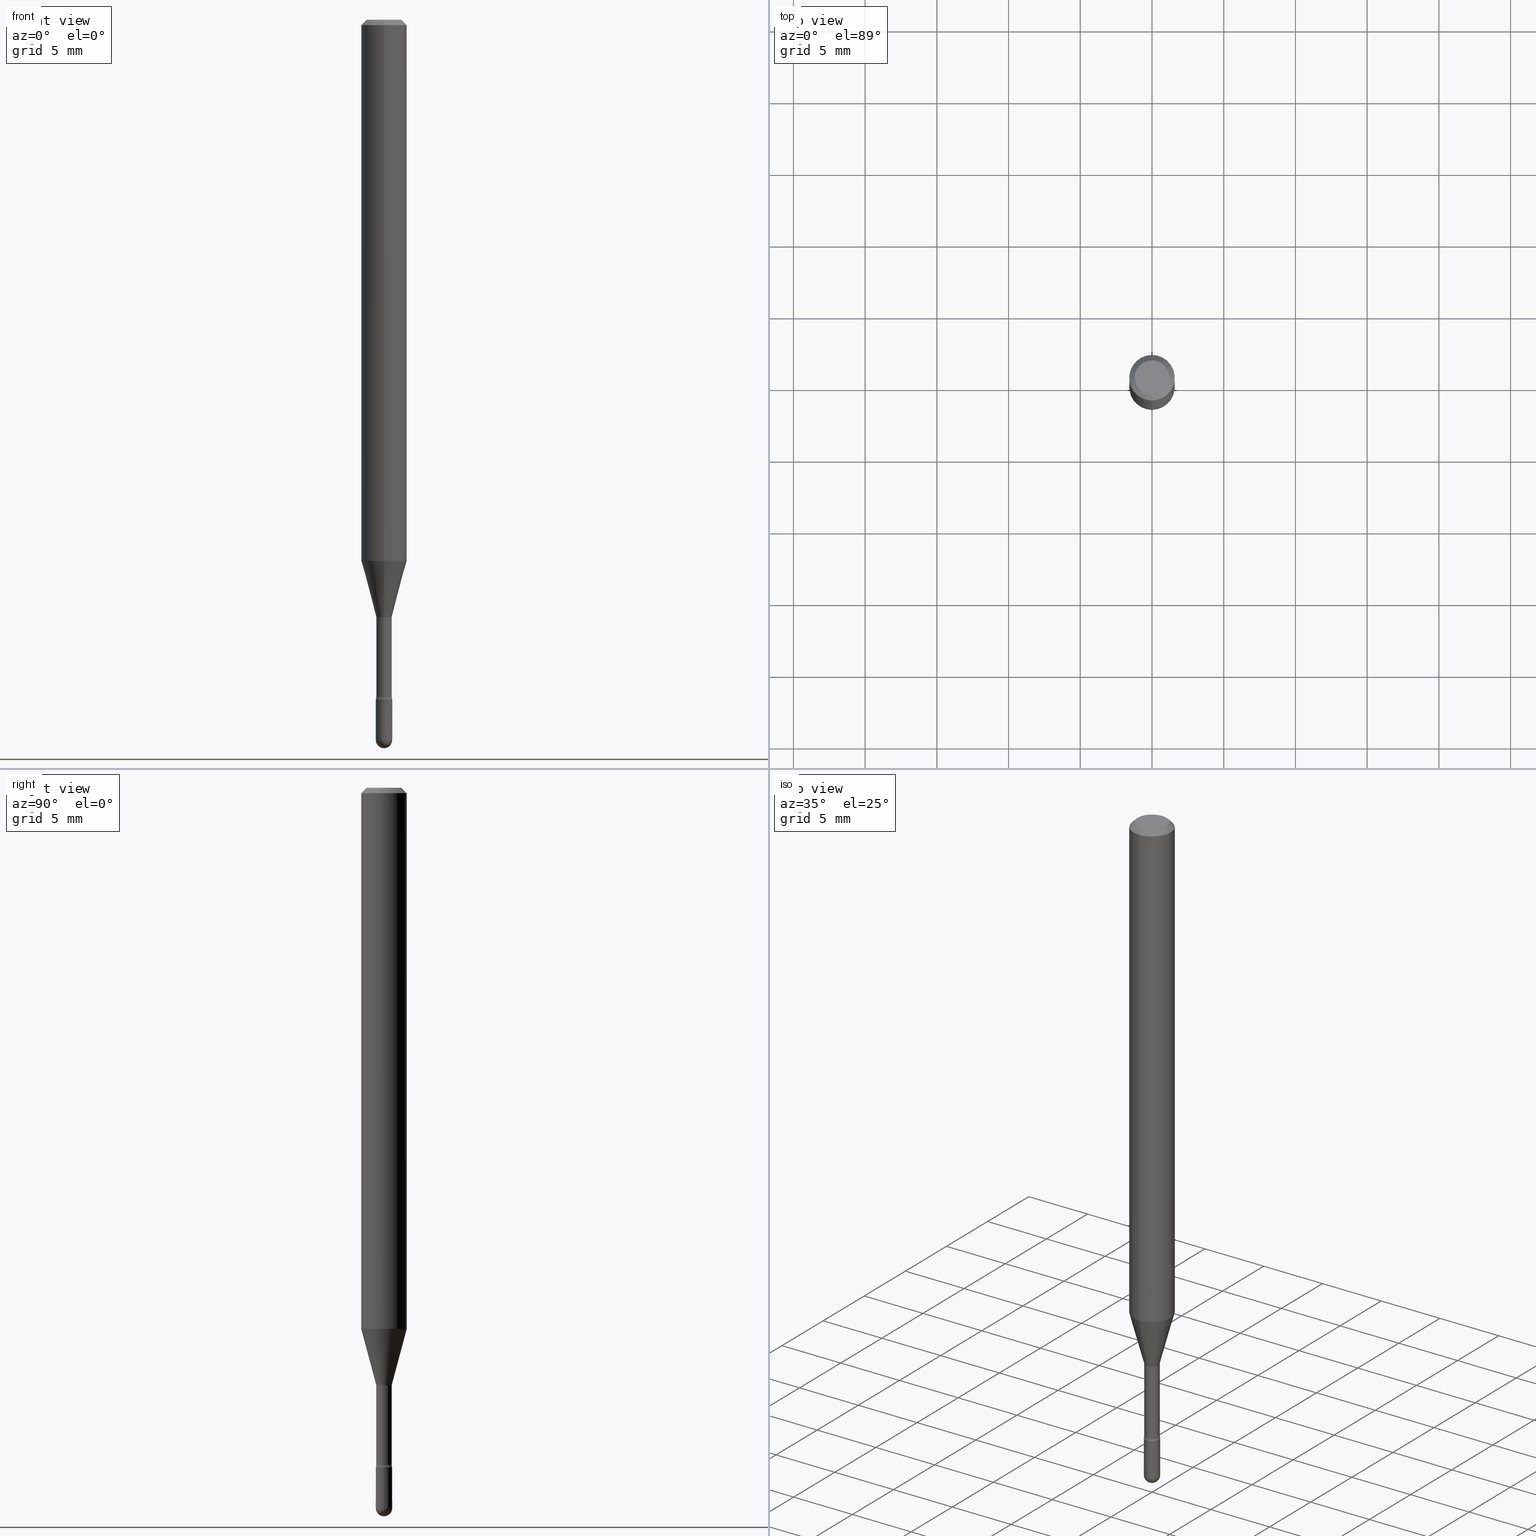
[diagram: canonical four-view strip — front | top / right | iso, engineering-drawing reading convention]
A machine part, canonical four-view strip (front | top / right | iso — engineering-drawing reading convention). The complete STEP part file that produces these views, byte-faithful:
ISO-10303-21;
HEADER;
FILE_DESCRIPTION (( 'STEP AP203' ),
    '1' );
FILE_NAME ('09315.STEP',
    '2024-04-09T22:24:54',
    ( '' ),
    ( '' ),
    'SwSTEP 2.0',
    'SolidWorks 2023',
    '' );
FILE_SCHEMA (( 'CONFIG_CONTROL_DESIGN' ));
ENDSEC;

DATA;
#1 = DIRECTION ( 'NONE',  ( -6.982962677686267499E-15, -1.000000000000000000, 0.000000000000000000 ) ) ;
#2 = ORIENTED_EDGE ( 'NONE', *, *, #490, .T. ) ;
#3 = VECTOR ( 'NONE', #277, 39.37007874015748143 ) ;
#4 = AXIS2_PLACEMENT_3D ( 'NONE', #561, #41, #164 ) ;
#5 =( CONVERSION_BASED_UNIT ( 'INCH', #313 ) LENGTH_UNIT ( ) NAMED_UNIT ( #208 ) );
#6 = CARTESIAN_POINT ( 'NONE',  ( 4.545590650445673704E-29, -6.489898742486526882E-15, -1.858780876267511539 ) ) ;
#7 = ADVANCED_FACE ( 'NONE', ( #518 ), #285, .T. ) ;
#8 = ORIENTED_EDGE ( 'NONE', *, *, #364, .F. ) ;
#9 = PERSON_AND_ORGANIZATION_ROLE ( 'design_owner' ) ;
#10 = FACE_OUTER_BOUND ( 'NONE', #241, .T. ) ;
#11 = APPLICATION_CONTEXT ( 'configuration controlled 3d designs of mechanical parts and assemblies' ) ;
#12 = ORIENTED_EDGE ( 'NONE', *, *, #560, .T. ) ;
#13 = VERTEX_POINT ( 'NONE', #111 ) ;
#14 = DATE_AND_TIME ( #405, #348 ) ;
#15 = DIRECTION ( 'NONE',  ( 0.000000000000000000, 0.000000000000000000, 1.000000000000000000 ) ) ;
#16 = CIRCLE ( 'NONE', #69, 0.06250000000000000000 ) ;
#17 = VECTOR ( 'NONE', #477, 39.37007874015748143 ) ;
#18 = LINE ( 'NONE', #98, #3 ) ;
#19 = ORIENTED_EDGE ( 'NONE', *, *, #134, .F. ) ;
#20 = LINE ( 'NONE', #463, #387 ) ;
#21 = ORIENTED_EDGE ( 'NONE', *, *, #359, .T. ) ;
#22 = FACE_OUTER_BOUND ( 'NONE', #488, .T. ) ;
#23 = CARTESIAN_POINT ( 'NONE',  ( 4.005819137426080629E-29, -5.719491093677303486E-15, -1.638092501787273170 ) ) ;
#24 = ORIENTED_EDGE ( 'NONE', *, *, #56, .F. ) ;
#25 = ADVANCED_FACE ( 'NONE', ( #103 ), #91, .F. ) ;
#26 = AXIS2_PLACEMENT_3D ( 'NONE', #416, #73, #556 ) ;
#27 = AXIS2_PLACEMENT_3D ( 'NONE', #168, #162, #340 ) ;
#28 = DIRECTION ( 'NONE',  ( -6.982962677686265922E-15, -1.000000000000000000, 3.483106191921935554E-15 ) ) ;
#29 = ADVANCED_FACE ( 'NONE', ( #293 ), #63, .T. ) ;
#30 = ORIENTED_EDGE ( 'NONE', *, *, #39, .F. ) ;
#31 = DIRECTION ( 'NONE',  ( 1.000000000000000000, -6.982962677686269077E-15, 0.000000000000000000 ) ) ;
#32 = ORIENTED_EDGE ( 'NONE', *, *, #517, .T. ) ;
#33 = VERTEX_POINT ( 'NONE', #249 ) ;
#34 = DIRECTION ( 'NONE',  ( -6.982962677686266711E-15, -1.000000000000000000, 3.491555627925129250E-15 ) ) ;
#35 = CARTESIAN_POINT ( 'NONE',  ( -0.02249999999999999917, 1.598721155460225359E-16, -1.106760395307353780E-30 ) ) ;
#36 = AXIS2_PLACEMENT_3D ( 'NONE', #146, #190, #547 ) ;
#37 = CIRCLE ( 'NONE', #243, 0.02115000000000004723 ) ;
#38 = CARTESIAN_POINT ( 'NONE',  ( 4.364351673553919652E-16, 0.06249999999999995143, -0.01500000000000030129 ) ) ;
#39 = EDGE_CURVE ( 'NONE', #449, #13, #252, .T. ) ;
#40 = PERSON_AND_ORGANIZATION ( #248, #515 ) ;
#41 = DIRECTION ( 'NONE',  ( -2.445416930396453536E-29, 3.491555627925126489E-15, 1.000000000000000000 ) ) ;
#42 = SHAPE_DEFINITION_REPRESENTATION ( #297, #443 ) ;
#43 = ADVANCED_FACE ( 'NONE', ( #232 ), #45, .F. ) ;
#44 = DIRECTION ( 'NONE',  ( -2.445416930396453536E-29, 3.491555627925126489E-15, 1.000000000000000000 ) ) ;
#45 = TOROIDAL_SURFACE ( 'NONE', #242, 0.03614999999999999464, 0.01500000000000001853 ) ;
#46 = AXIS2_PLACEMENT_3D ( 'NONE', #273, #15, #316 ) ;
#47 = DIRECTION ( 'NONE',  ( -2.445416930396453536E-29, 3.491555627925126489E-15, 1.000000000000000000 ) ) ;
#48 = VERTEX_POINT ( 'NONE', #411 ) ;
#49 = DIRECTION ( 'NONE',  ( 6.982962677686265922E-15, 1.000000000000000000, -3.483106191921935554E-15 ) ) ;
#50 = VERTEX_POINT ( 'NONE', #82 ) ;
#51 = APPLICATION_PROTOCOL_DEFINITION ( 'international standard', 'config_control_design', 1994, #11 ) ;
#52 = AXIS2_PLACEMENT_3D ( 'NONE', #170, #215, #49 ) ;
#53 = EDGE_LOOP ( 'NONE', ( #374, #530, #55, #97 ) ) ;
#54 = APPROVAL_ROLE ( '' ) ;
#55 = ORIENTED_EDGE ( 'NONE', *, *, #359, .F. ) ;
#56 = EDGE_CURVE ( 'NONE', #357, #71, #368, .T. ) ;
#57 = DIRECTION ( 'NONE',  ( -6.982962677686266711E-15, -1.000000000000000000, 3.491555627925126883E-15 ) ) ;
#58 = EDGE_LOOP ( 'NONE', ( #137, #496, #191, #224 ) ) ;
#59 = EDGE_CURVE ( 'NONE', #275, #367, #298, .T. ) ;
#60 = AXIS2_PLACEMENT_3D ( 'NONE', #274, #467, #57 ) ;
#61 = AXIS2_PLACEMENT_3D ( 'NONE', #294, #473, #247 ) ;
#62 = DIRECTION ( 'NONE',  ( -2.445468806185136597E-29, 3.491481338843145583E-15, 1.000000000000000000 ) ) ;
#63 = CYLINDRICAL_SURFACE ( 'NONE', #119, 0.06250000000000000000 ) ;
#64 = CARTESIAN_POINT ( 'NONE',  ( 4.560799323535279574E-29, -6.511612696942466269E-15, -1.864999999999999991 ) ) ;
#65 = ORIENTED_EDGE ( 'NONE', *, *, #344, .F. ) ;
#66 = LINE ( 'NONE', #375, #326 ) ;
#67 = DIRECTION ( 'NONE',  ( -4.851104656540964275E-15, -0.7071067811865500152, -0.7071067811865450192 ) ) ;
#68 = DIRECTION ( 'NONE',  ( -6.982962677686265922E-15, -1.000000000000000000, 3.491555627925126489E-15 ) ) ;
#69 = AXIS2_PLACEMENT_3D ( 'NONE', #227, #287, #231 ) ;
#70 = DIRECTION ( 'NONE',  ( 2.445416930396452976E-29, -3.491555627925126489E-15, -1.000000000000000000 ) ) ;
#71 = VERTEX_POINT ( 'NONE', #444 ) ;
#72 = DIRECTION ( 'NONE',  ( 1.000000000000000000, -7.105427357601001070E-15, 4.926316418320947088E-29 ) ) ;
#73 = DIRECTION ( 'NONE',  ( -2.445416930396453536E-29, 3.491555627925126489E-15, 1.000000000000000000 ) ) ;
#74 = DIRECTION ( 'NONE',  ( 6.982962677686265922E-15, 1.000000000000000000, 0.000000000000000000 ) ) ;
#75 = CARTESIAN_POINT ( 'NONE',  ( 4.835914564231107217E-29, -6.904404347562320349E-15, -1.977499999999999813 ) ) ;
#76 = PERSON_AND_ORGANIZATION_ROLE ( 'classification_officer' ) ;
#77 = AXIS2_PLACEMENT_3D ( 'NONE', #108, #147, #468 ) ;
#78 = AXIS2_PLACEMENT_3D ( 'NONE', #461, #415, #199 ) ;
#79 = DIRECTION ( 'NONE',  ( 1.000000000000000000, -6.982962677686269866E-15, 0.000000000000000000 ) ) ;
#80 = ADVANCED_FACE ( 'NONE', ( #128 ), #309, .T. ) ;
#81 = CARTESIAN_POINT ( 'NONE',  ( 0.000000000000000000, 0.000000000000000000, 0.000000000000000000 ) ) ;
#82 = CARTESIAN_POINT ( 'NONE',  ( 2.990003359772499771E-16, 0.02166111260565826632, -1.638092501787273170 ) ) ;
#83 = APPROVAL_STATUS ( 'not_yet_approved' ) ;
#84 =( LENGTH_UNIT ( ) NAMED_UNIT ( * ) SI_UNIT ( $, .METRE. ) );
#85 = ORIENTED_EDGE ( 'NONE', *, *, #59, .F. ) ;
#86 = AXIS2_PLACEMENT_3D ( 'NONE', #472, #521, #79 ) ;
#87 = EDGE_CURVE ( 'NONE', #13, #275, #454, .T. ) ;
#88 = VERTEX_POINT ( 'NONE', #487 ) ;
#89 = ORIENTED_EDGE ( 'NONE', *, *, #403, .T. ) ;
#90 = ORIENTED_EDGE ( 'NONE', *, *, #158, .T. ) ;
#91 = TOROIDAL_SURFACE ( 'NONE', #427, 0.03615000000000005015, 0.01500000000000000638 ) ;
#92 = CIRCLE ( 'NONE', #524, 0.06250000000000000000 ) ;
#93 = ADVANCED_FACE ( 'NONE', ( #10 ), #469, .F. ) ;
#94 = VERTEX_POINT ( 'NONE', #389 ) ;
#95 = PERSON_AND_ORGANIZATION ( #248, #515 ) ;
#96 = CARTESIAN_POINT ( 'NONE',  ( 3.668125395594700413E-31, -5.237333441887718773E-17, -0.01500000000000008271 ) ) ;
#97 = ORIENTED_EDGE ( 'NONE', *, *, #465, .F. ) ;
#98 = CARTESIAN_POINT ( 'NONE',  ( 1.539114621044008531E-16, 0.02166111260565826632, -1.638092501787273170 ) ) ;
#99 = ORIENTED_EDGE ( 'NONE', *, *, #59, .T. ) ;
#100 = CIRCLE ( 'NONE', #483, 0.02249999999999999917 ) ;
#101 = APPROVAL_PERSON_ORGANIZATION ( #124, #509, #259 ) ;
#102 = CARTESIAN_POINT ( 'NONE',  ( 3.316907271900976096E-16, 0.04749999999999999362, 3.181605544910388144E-17 ) ) ;
#103 = FACE_OUTER_BOUND ( 'NONE', #58, .T. ) ;
#104 = CARTESIAN_POINT ( 'NONE',  ( -1.598721155459743168E-16, -0.02250000000000693112, -1.977499999999999813 ) ) ;
#105 = DIRECTION ( 'NONE',  ( 2.445416930396453536E-29, -3.491555627925126489E-15, -1.000000000000000000 ) ) ;
#106 = FACE_OUTER_BOUND ( 'NONE', #197, .T. ) ;
#107 = DIRECTION ( 'NONE',  ( -1.000000000000000000, 6.982962677686265922E-15, -4.883557194083112901E-29 ) ) ;
#108 = CARTESIAN_POINT ( 'NONE',  ( 4.835914564231107217E-29, -6.904404347562320349E-15, -1.977499999999999813 ) ) ;
#109 = CARTESIAN_POINT ( 'NONE',  ( -1.512587408824710319E-16, -0.02166111260566970509, -1.638092501787273170 ) ) ;
#110 = CIRCLE ( 'NONE', #60, 0.04749999999999999362 ) ;
#111 = CARTESIAN_POINT ( 'NONE',  ( 1.571166602479895061E-16, 0.02249999999999311925, -1.977499999999999813 ) ) ;
#112 = CC_DESIGN_DATE_AND_TIME_ASSIGNMENT ( #480, #478, ( #176 ) ) ;
#113 = CARTESIAN_POINT ( 'NONE',  ( 4.545494224721728426E-29, -6.490036829611427454E-15, -1.858780876267511539 ) ) ;
#114 = ORIENTED_EDGE ( 'NONE', *, *, #286, .T. ) ;
#115 = CARTESIAN_POINT ( 'NONE',  ( 3.633106289342633259E-29, -5.187333314711248527E-15, -1.485679699107027130 ) ) ;
#116 = LINE ( 'NONE', #38, #397 ) ;
#117 = LINE ( 'NONE', #299, #17 ) ;
#118 = ADVANCED_FACE ( 'NONE', ( #181 ), #279, .T. ) ;
#119 = AXIS2_PLACEMENT_3D ( 'NONE', #553, #511, #331 ) ;
#120 = CIRCLE ( 'NONE', #438, 0.02249999999999999917 ) ;
#121 = AXIS2_PLACEMENT_3D ( 'NONE', #81, #302, #336 ) ;
#122 = FACE_OUTER_BOUND ( 'NONE', #361, .T. ) ;
#123 = APPROVAL_ROLE ( '' ) ;
#124 = PERSON_AND_ORGANIZATION ( #248, #515 ) ;
#125 = DIRECTION ( 'NONE',  ( -2.445416930396453536E-29, 3.491555627925126489E-15, 1.000000000000000000 ) ) ;
#126 = DATE_AND_TIME ( #189, #327 ) ;
#127 = CARTESIAN_POINT ( 'NONE',  ( 3.633106289342633259E-29, -5.187333314711248527E-15, -1.485679699107027130 ) ) ;
#128 = FACE_OUTER_BOUND ( 'NONE', #288, .T. ) ;
#129 = DIRECTION ( 'NONE',  ( -2.445416930396453536E-29, 3.491555627925126489E-15, 1.000000000000000000 ) ) ;
#130 = CONICAL_SURFACE ( 'NONE', #307, 0.06250000000000000000, 0.7853981633974483900 ) ;
#131 = AXIS2_PLACEMENT_3D ( 'NONE', #562, #125, #479 ) ;
#132 = CC_DESIGN_PERSON_AND_ORGANIZATION_ASSIGNMENT ( #400, #412, ( #500 ) ) ;
#133 = CARTESIAN_POINT ( 'NONE',  ( 0.000000000000000000, 0.000000000000000000, 0.000000000000000000 ) ) ;
#134 = EDGE_CURVE ( 'NONE', #377, #48, #545, .T. ) ;
#135 = ORIENTED_EDGE ( 'NONE', *, *, #317, .F. ) ;
#136 = DIRECTION ( 'NONE',  ( -1.000000000000000000, 6.982962677686265922E-15, -4.883557194083111780E-29 ) ) ;
#137 = ORIENTED_EDGE ( 'NONE', *, *, #490, .F. ) ;
#138 = ADVANCED_FACE ( 'NONE', ( #173 ), #351, .T. ) ;
#139 = ORIENTED_EDGE ( 'NONE', *, *, #366, .F. ) ;
#140 = AXIS2_PLACEMENT_3D ( 'NONE', #177, #393, #1 ) ;
#141 = LOCAL_TIME ( 18, 24, 54.00000000000000000, #301 ) ;
#142 = CARTESIAN_POINT ( 'NONE',  ( -1.476896606330193891E-16, -0.02115000000000653510, -1.858780876267511539 ) ) ;
#143 = VERTEX_POINT ( 'NONE', #485 ) ;
#144 = ADVANCED_FACE ( 'NONE', ( #122 ), #282, .F. ) ;
#145 = DIRECTION ( 'NONE',  ( -2.445416930396453536E-29, 3.491555627925126489E-15, 1.000000000000000000 ) ) ;
#146 = CARTESIAN_POINT ( 'NONE',  ( 4.005819137426080629E-29, -5.719491093677303486E-15, -1.638092501787273170 ) ) ;
#147 = DIRECTION ( 'NONE',  ( 1.000000000000000000, -6.982962677686265922E-15, 4.883557194083112340E-29 ) ) ;
#148 = ADVANCED_FACE ( 'NONE', ( #549 ), #130, .T. ) ;
#149 = AXIS2_PLACEMENT_3D ( 'NONE', #23, #196, #360 ) ;
#150 = DIRECTION ( 'NONE',  ( -2.445416930396453536E-29, 3.491555627925126489E-15, 1.000000000000000000 ) ) ;
#151 = ORIENTED_EDGE ( 'NONE', *, *, #465, .T. ) ;
#152 = CARTESIAN_POINT ( 'NONE',  ( 3.668125395594700413E-31, -5.237333441887718773E-17, -0.01500000000000008271 ) ) ;
#153 = DIRECTION ( 'NONE',  ( -6.982962677686265922E-15, -1.000000000000000000, 3.491555627925126489E-15 ) ) ;
#154 = PLANE ( 'NONE',  #355 ) ;
#155 = ORIENTED_EDGE ( 'NONE', *, *, #422, .T. ) ;
#156 = EDGE_CURVE ( 'NONE', #48, #94, #407, .T. ) ;
#157 = EDGE_CURVE ( 'NONE', #50, #88, #18, .T. ) ;
#158 = EDGE_CURVE ( 'NONE', #319, #399, #20, .T. ) ;
#159 = ORIENTED_EDGE ( 'NONE', *, *, #156, .F. ) ;
#160 = CIRCLE ( 'NONE', #446, 0.02249999999999999917 ) ;
#161 = DIRECTION ( 'NONE',  ( -6.982962677686265133E-15, -1.000000000000000000, 0.000000000000000000 ) ) ;
#162 = DIRECTION ( 'NONE',  ( -2.445416930396453536E-29, 3.491555627925126489E-15, 1.000000000000000000 ) ) ;
#163 = EDGE_CURVE ( 'NONE', #563, #319, #110, .T. ) ;
#164 = DIRECTION ( 'NONE',  ( -6.982962677686265922E-15, -1.000000000000000000, 3.491555627925125306E-15 ) ) ;
#165 = TOROIDAL_SURFACE ( 'NONE', #379, 0.03614999999999999464, 0.01500000000000001853 ) ;
#166 = CC_DESIGN_APPROVAL ( #230, ( #500 ) ) ;
#167 = COORDINATED_UNIVERSAL_TIME_OFFSET ( 5, 0, .BEHIND. ) ;
#168 = CARTESIAN_POINT ( 'NONE',  ( 2.023175635137055219E-45, -2.889390603954697026E-31, -8.274350334015126073E-17 ) ) ;
#169 = VERTEX_POINT ( 'NONE', #408 ) ;
#170 = CARTESIAN_POINT ( 'NONE',  ( 3.668125395594700413E-31, -5.237333441887718773E-17, -0.01500000000000008271 ) ) ;
#171 = APPROVAL ( #529, 'UNSPECIFIED' ) ;
#172 = ORIENTED_EDGE ( 'NONE', *, *, #560, .F. ) ;
#173 = FACE_OUTER_BOUND ( 'NONE', #460, .T. ) ;
#174 = AXIS2_PLACEMENT_3D ( 'NONE', #283, #462, #34 ) ;
#175 = EDGE_LOOP ( 'NONE', ( #513, #90, #548, #278 ) ) ;
#176 = SECURITY_CLASSIFICATION ( '', '', #525 ) ;
#177 = CARTESIAN_POINT ( 'NONE',  ( -2.524341007983183546E-16, -0.03615000000000573310, -1.641974787463811092 ) ) ;
#178 = ORIENTED_EDGE ( 'NONE', *, *, #158, .F. ) ;
#179 = APPLICATION_PROTOCOL_DEFINITION ( 'international standard', 'config_control_design', 1994, #531 ) ;
#180 = EDGE_CURVE ( 'NONE', #315, #71, #198, .T. ) ;
#181 = FACE_OUTER_BOUND ( 'NONE', #175, .T. ) ;
#182 = ORIENTED_EDGE ( 'NONE', *, *, #476, .F. ) ;
#183 = DIRECTION ( 'NONE',  ( 6.982962677686265922E-15, 1.000000000000000000, 0.000000000000000000 ) ) ;
#184 = LINE ( 'NONE', #356, #314 ) ;
#185 = ORIENTED_EDGE ( 'NONE', *, *, #508, .F. ) ;
#186 = CIRCLE ( 'NONE', #36, 0.02166111260566398744 ) ;
#187 = MANIFOLD_SOLID_BREP ( 'Body-Move/Copy2[1]', #323 ) ;
#188 = AXIS2_PLACEMENT_3D ( 'NONE', #75, #250, #426 ) ;
#189 = CALENDAR_DATE ( 2024, 9, 4 ) ;
#190 = DIRECTION ( 'NONE',  ( -2.445416930396453536E-29, 3.491555627925126489E-15, 1.000000000000000000 ) ) ;
#191 = ORIENTED_EDGE ( 'NONE', *, *, #56, .T. ) ;
#192 = ADVANCED_FACE ( 'NONE', ( #235 ), #542, .F. ) ;
#193 = DIRECTION ( 'NONE',  ( -2.445416930396453536E-29, 3.491555627925126489E-15, 1.000000000000000000 ) ) ;
#194 = ORIENTED_EDGE ( 'NONE', *, *, #517, .F. ) ;
#195 = ADVANCED_FACE ( 'NONE', ( #413 ), #154, .T. ) ;
#196 = DIRECTION ( 'NONE',  ( -2.445416930396453536E-29, 3.491555627925126489E-15, 1.000000000000000000 ) ) ;
#197 = EDGE_LOOP ( 'NONE', ( #457, #421, #185, #414 ) ) ;
#198 = CIRCLE ( 'NONE', #535, 0.01500000000000001159 ) ;
#199 = DIRECTION ( 'NONE',  ( -6.982962677686265922E-15, -1.000000000000000000, 3.491555627925126489E-15 ) ) ;
#200 = CARTESIAN_POINT ( 'NONE',  ( 0.02249999999999999917, -6.668729357190407112E-15, -1.864999999999999991 ) ) ;
#201 = ORIENTED_EDGE ( 'NONE', *, *, #396, .F. ) ;
#202 = DIRECTION ( 'NONE',  ( -2.445416930396453536E-29, 3.491555627925126489E-15, 1.000000000000000000 ) ) ;
#203 = CARTESIAN_POINT ( 'NONE',  ( 4.835914564231107217E-29, -6.904404347562320349E-15, -1.977499999999999813 ) ) ;
#204 = CARTESIAN_POINT ( 'NONE',  ( 4.015398123285219100E-29, -5.732924329280835832E-15, -1.641974787463811092 ) ) ;
#205 = ORIENTED_EDGE ( 'NONE', *, *, #401, .F. ) ;
#206 = AXIS2_PLACEMENT_3D ( 'NONE', #6, #44, #392 ) ;
#207 = FACE_OUTER_BOUND ( 'NONE', #228, .T. ) ;
#208 = DIMENSIONAL_EXPONENTS ( 1.000000000000000000, 0.000000000000000000, 0.000000000000000000, 0.000000000000000000, 0.000000000000000000, 0.000000000000000000, 0.000000000000000000 ) ;
#209 = PERSON_AND_ORGANIZATION_ROLE ( 'creator' ) ;
#210 = CARTESIAN_POINT ( 'NONE',  ( 3.840629472727447874E-16, 0.04749999999999999362, -2.485923956665947374E-16 ) ) ;
#211 = LINE ( 'NONE', #35, #271 ) ;
#212 = AXIS2_PLACEMENT_3D ( 'NONE', #466, #72, #266 ) ;
#213 = CC_DESIGN_DATE_AND_TIME_ASSIGNMENT ( #126, #433, ( #500 ) ) ;
#214 = ORIENTED_EDGE ( 'NONE', *, *, #401, .T. ) ;
#215 = DIRECTION ( 'NONE',  ( 2.445416930396453536E-29, -3.491555627925126489E-15, -1.000000000000000000 ) ) ;
#216 = ORIENTED_EDGE ( 'NONE', *, *, #522, .T. ) ;
#217 = DIRECTION ( 'NONE',  ( 1.000000000000000000, -6.982962677686266711E-15, 4.876176775795935793E-29 ) ) ;
#218 = AXIS2_PLACEMENT_3D ( 'NONE', #436, #481, #398 ) ;
#219 = DIRECTION ( 'NONE',  ( 6.982962677686265922E-15, 1.000000000000000000, -3.483106191921935554E-15 ) ) ;
#220 = ORIENTED_EDGE ( 'NONE', *, *, #527, .T. ) ;
#221 = CIRCLE ( 'NONE', #188, 0.02250000000000005121 ) ;
#222 = MECHANICAL_CONTEXT ( 'NONE', #11, 'mechanical' ) ;
#223 = ORIENTED_EDGE ( 'NONE', *, *, #253, .T. ) ;
#224 = ORIENTED_EDGE ( 'NONE', *, *, #180, .F. ) ;
#225 = COORDINATED_UNIVERSAL_TIME_OFFSET ( 5, 0, .BEHIND. ) ;
#226 = COORDINATED_UNIVERSAL_TIME_OFFSET ( 5, 0, .BEHIND. ) ;
#227 = CARTESIAN_POINT ( 'NONE',  ( 3.668125395594700413E-31, -5.237333441887718773E-17, -0.01500000000000008271 ) ) ;
#228 = EDGE_LOOP ( 'NONE', ( #386, #493, #534, #205 ) ) ;
#229 = CIRCLE ( 'NONE', #347, 0.01500000000000001853 ) ;
#230 = APPROVAL ( #353, 'UNSPECIFIED' ) ;
#231 = DIRECTION ( 'NONE',  ( -6.982962677686265922E-15, -1.000000000000000000, 3.483106191921935554E-15 ) ) ;
#232 = FACE_OUTER_BOUND ( 'NONE', #499, .T. ) ;
#233 = EDGE_CURVE ( 'NONE', #270, #33, #120, .T. ) ;
#234 = DIRECTION ( 'NONE',  ( -6.982962677686265922E-15, -1.000000000000000000, 4.370956789862821150E-15 ) ) ;
#235 = FACE_OUTER_BOUND ( 'NONE', #236, .T. ) ;
#236 = EDGE_LOOP ( 'NONE', ( #557, #220 ) ) ;
#237 = DIRECTION ( 'NONE',  ( -2.445416930396453536E-29, 3.491555627925126489E-15, 1.000000000000000000 ) ) ;
#238 = EDGE_CURVE ( 'NONE', #50, #377, #186, .T. ) ;
#239 = EDGE_CURVE ( 'NONE', #377, #50, #514, .T. ) ;
#240 = DIRECTION ( 'NONE',  ( 1.000000000000000000, -6.982962677686269077E-15, 0.000000000000000000 ) ) ;
#241 = EDGE_LOOP ( 'NONE', ( #486, #65, #325, #114 ) ) ;
#242 = AXIS2_PLACEMENT_3D ( 'NONE', #543, #129, #296 ) ;
#243 = AXIS2_PLACEMENT_3D ( 'NONE', #113, #295, #520 ) ;
#244 = CARTESIAN_POINT ( 'NONE',  ( -4.364351673553912750E-16, -0.06250000000000005551, -0.01499999999999986587 ) ) ;
#245 = DIRECTION ( 'NONE',  ( 1.000000000000000000, -6.982962677686265922E-15, 4.876176775795935793E-29 ) ) ;
#246 = VERTEX_POINT ( 'NONE', #362 ) ;
#247 = DIRECTION ( 'NONE',  ( -6.982962677686265133E-15, -1.000000000000000000, 0.000000000000000000 ) ) ;
#248 = PERSON ( 'UNSPECIFIED', 'UNSPECIFIED', 'UNSPECIFIED', ('UNSPECIFIED'), ('UNSPECIFIED'), ('UNSPECIFIED') ) ;
#249 = CARTESIAN_POINT ( 'NONE',  ( -0.02249999999999999917, -6.548136406706371414E-15, -1.864999999999999991 ) ) ;
#250 = DIRECTION ( 'NONE',  ( -1.000000000000000000, 7.105427357601001070E-15, -4.926315508542082329E-29 ) ) ;
#251 = PERSON_AND_ORGANIZATION ( #248, #515 ) ;
#252 = CIRCLE ( 'NONE', #77, 0.02250000000000005121 ) ;
#253 = EDGE_CURVE ( 'NONE', #377, #169, #184, .T. ) ;
#254 = AXIS2_PLACEMENT_3D ( 'NONE', #448, #503, #498 ) ;
#255 = DIRECTION ( 'NONE',  ( 1.000000000000000000, -6.982962677686269866E-15, 0.000000000000000000 ) ) ;
#256 = DIRECTION ( 'NONE',  ( 4.937700262164548042E-15, 0.7071067811865451302, -0.7071067811865499042 ) ) ;
#257 = APPROVAL_DATE_TIME ( #14, #230 ) ;
#258 = PERSON_AND_ORGANIZATION ( #248, #515 ) ;
#259 = APPROVAL_ROLE ( '' ) ;
#260 = ORIENTED_EDGE ( 'NONE', *, *, #233, .F. ) ;
#261 = DIRECTION ( 'NONE',  ( -2.445416930396453536E-29, 3.491555627925126489E-15, 1.000000000000000000 ) ) ;
#262 = AXIS2_PLACEMENT_3D ( 'NONE', #552, #62, #330 ) ;
#263 = ORIENTED_EDGE ( 'NONE', *, *, #422, .F. ) ;
#264 = CALENDAR_DATE ( 2024, 9, 4 ) ;
#265 =( NAMED_UNIT ( * ) SI_UNIT ( $, .STERADIAN. ) SOLID_ANGLE_UNIT ( ) );
#266 = DIRECTION ( 'NONE',  ( 7.105427357600997914E-15, 1.000000000000000000, 0.000000000000000000 ) ) ;
#267 = PRODUCT_RELATED_PRODUCT_CATEGORY ( 'detail', '', ( #382 ) ) ;
#268 = ORIENTED_EDGE ( 'NONE', *, *, #239, .F. ) ;
#269 = CIRCLE ( 'NONE', #26, 0.02114999999999999866 ) ;
#270 = VERTEX_POINT ( 'NONE', #200 ) ;
#271 = VECTOR ( 'NONE', #339, 39.37007874015748143 ) ;
#272 = ORIENTED_EDGE ( 'NONE', *, *, #317, .T. ) ;
#273 = CARTESIAN_POINT ( 'NONE',  ( 0.000000000000000000, 0.000000000000000000, 0.000000000000000000 ) ) ;
#274 = CARTESIAN_POINT ( 'NONE',  ( 2.023175635137055219E-45, -2.889390603954697026E-31, -8.274350334015126073E-17 ) ) ;
#275 = VERTEX_POINT ( 'NONE', #365 ) ;
#276 = CC_DESIGN_PERSON_AND_ORGANIZATION_ASSIGNMENT ( #494, #9, ( #382 ) ) ;
#277 = DIRECTION ( 'NONE',  ( 1.839019923739595977E-15, 0.2588190451025243477, 0.9659258262890673130 ) ) ;
#278 = ORIENTED_EDGE ( 'NONE', *, *, #539, .F. ) ;
#279 = CONICAL_SURFACE ( 'NONE', #52, 0.06250000000000000000, 0.7853981633974483900 ) ;
#280 = APPROVAL_PERSON_ORGANIZATION ( #95, #230, #54 ) ;
#281 = CARTESIAN_POINT ( 'NONE',  ( -2.524341007983134243E-16, -0.03615000000000654495, -1.858780876267511539 ) ) ;
#282 = PLANE ( 'NONE',  #78 ) ;
#283 = CARTESIAN_POINT ( 'NONE',  ( -1.169113584055446105E-44, 1.669184350826100908E-30, 4.780733988912460139E-16 ) ) ;
#284 = DIRECTION ( 'NONE',  ( 6.982962677686265922E-15, 1.000000000000000000, -3.491555627925126489E-15 ) ) ;
#285 = SPHERICAL_SURFACE ( 'NONE', #346, 0.02250000000000005121 ) ;
#286 = EDGE_CURVE ( 'NONE', #71, #357, #160, .T. ) ;
#287 = DIRECTION ( 'NONE',  ( -2.445416930396453536E-29, 3.491555627925126489E-15, 1.000000000000000000 ) ) ;
#288 = EDGE_LOOP ( 'NONE', ( #194, #99, #151, #349, #139 ) ) ;
#289 = AXIS2_PLACEMENT_3D ( 'NONE', #102, #70, #284 ) ;
#290 = DIRECTION ( 'NONE',  ( -2.445416930396453536E-29, 3.491555627925126489E-15, 1.000000000000000000 ) ) ;
#291 = CARTESIAN_POINT ( 'NONE',  ( 4.545590650445673704E-29, -6.489898742486526882E-15, -1.858780876267511539 ) ) ;
#292 = CARTESIAN_POINT ( 'NONE',  ( 4.440892098500625669E-16, 0.06250000000000000000, 2.598511721459256577E-16 ) ) ;
#293 = FACE_OUTER_BOUND ( 'NONE', #322, .T. ) ;
#294 = CARTESIAN_POINT ( 'NONE',  ( 4.005819137426080629E-29, -5.719491093677303486E-15, -1.638092501787273170 ) ) ;
#295 = DIRECTION ( 'NONE',  ( -2.445416930396453536E-29, 3.491555627925126489E-15, 1.000000000000000000 ) ) ;
#296 = DIRECTION ( 'NONE',  ( -6.982962677686265922E-15, -1.000000000000000000, 3.491555627925126489E-15 ) ) ;
#297 = PRODUCT_DEFINITION_SHAPE ( 'NONE', 'NONE',  #500 ) ;
#298 = CIRCLE ( 'NONE', #86, 0.02249999999999999570 ) ;
#299 = CARTESIAN_POINT ( 'NONE',  ( -1.476896606330647239E-16, -0.02115000000000002642, 5.519198004218626365E-16 ) ) ;
#300 = VECTOR ( 'NONE', #47, 39.37007874015748143 ) ;
#301 = COORDINATED_UNIVERSAL_TIME_OFFSET ( 5, 0, .BEHIND. ) ;
#302 = DIRECTION ( 'NONE',  ( -2.445468806185136597E-29, 3.491481338843145583E-15, 1.000000000000000000 ) ) ;
#303 = PERSON_AND_ORGANIZATION_ROLE ( 'design_supplier' ) ;
#304 = CALENDAR_DATE ( 2024, 9, 4 ) ;
#305 = DIRECTION ( 'NONE',  ( -2.445468806185136877E-29, 3.491481338843145188E-15, 1.000000000000000000 ) ) ;
#306 = CLOSED_SHELL ( 'NONE', ( #43, #385, #25, #118, #550, #425, #497, #29, #148, #192, #144, #93, #554, #440 ) ) ;
#307 = AXIS2_PLACEMENT_3D ( 'NONE', #152, #105, #219 ) ;
#308 = APPROVAL_PERSON_ORGANIZATION ( #251, #171, #123 ) ;
#309 = CYLINDRICAL_SURFACE ( 'NONE', #482, 0.02249999999999999917 ) ;
#310 = CIRCLE ( 'NONE', #212, 0.01500000000000001159 ) ;
#311 = EDGE_LOOP ( 'NONE', ( #201, #2, #12, #263 ) ) ;
#312 = ORIENTED_EDGE ( 'NONE', *, *, #87, .F. ) ;
#313 = LENGTH_MEASURE_WITH_UNIT ( LENGTH_MEASURE( 0.02539999999999999897 ), #84 );
#314 = VECTOR ( 'NONE', #537, 39.37007874015748854 ) ;
#315 = VERTEX_POINT ( 'NONE', #142 ) ;
#316 = DIRECTION ( 'NONE',  ( 1.000000000000000000, 0.000000000000000000, 0.000000000000000000 ) ) ;
#317 = EDGE_CURVE ( 'NONE', #50, #94, #229, .T. ) ;
#318 = CARTESIAN_POINT ( 'NONE',  ( 2.568611989773163124E-16, 0.03614999999999426311, -1.641974787463811092 ) ) ;
#319 = VERTEX_POINT ( 'NONE', #328 ) ;
#320 = CC_DESIGN_PERSON_AND_ORGANIZATION_ASSIGNMENT ( #40, #209, ( #558 ) ) ;
#321 = DIRECTION ( 'NONE',  ( -6.982962677686266711E-15, -1.000000000000000000, 0.000000000000000000 ) ) ;
#322 = EDGE_LOOP ( 'NONE', ( #182, #89, #214, #8 ) ) ;
#323 = CLOSED_SHELL ( 'NONE', ( #458, #138, #195, #7, #80 ) ) ;
#324 = CARTESIAN_POINT ( 'NONE',  ( 4.545494224721728426E-29, -6.490036829611427454E-15, -1.858780876267511539 ) ) ;
#325 = ORIENTED_EDGE ( 'NONE', *, *, #180, .T. ) ;
#326 = VECTOR ( 'NONE', #373, 39.37007874015748143 ) ;
#327 = LOCAL_TIME ( 18, 24, 54.00000000000000000, #226 ) ;
#328 = CARTESIAN_POINT ( 'NONE',  ( -3.773273898774340269E-16, -0.04749999999999999362, 8.310538898629222827E-17 ) ) ;
#329 = EDGE_LOOP ( 'NONE', ( #409, #32, #260, #445, #21 ) ) ;
#330 = DIRECTION ( 'NONE',  ( 1.000000000000000000, -6.982962677686269866E-15, 0.000000000000000000 ) ) ;
#331 = DIRECTION ( 'NONE',  ( -6.982962677686265922E-15, -1.000000000000000000, 3.491555627925125306E-15 ) ) ;
#332 = ORIENTED_EDGE ( 'NONE', *, *, #134, .T. ) ;
#333 = AXIS2_PLACEMENT_3D ( 'NONE', #532, #136, #183 ) ;
#334 =( GEOMETRIC_REPRESENTATION_CONTEXT ( 3 ) GLOBAL_UNCERTAINTY_ASSIGNED_CONTEXT ( ( #489 ) ) GLOBAL_UNIT_ASSIGNED_CONTEXT ( ( #5, #406, #265 ) ) REPRESENTATION_CONTEXT ( 'NONE', 'WORKASPACE' ) );
#335 = DIRECTION ( 'NONE',  ( -2.445416930396453536E-29, 3.491555627925126489E-15, 1.000000000000000000 ) ) ;
#336 = DIRECTION ( 'NONE',  ( 1.000000000000000000, -6.982962677686266711E-15, 4.876176775795935793E-29 ) ) ;
#337 = VERTEX_POINT ( 'NONE', #371 ) ;
#338 = EDGE_CURVE ( 'NONE', #399, #337, #92, .T. ) ;
#339 = DIRECTION ( 'NONE',  ( -2.445468806185136877E-29, 3.491481338843145188E-15, 1.000000000000000000 ) ) ;
#340 = DIRECTION ( 'NONE',  ( -6.982962677686266711E-15, -1.000000000000000000, 3.491555627925126883E-15 ) ) ;
#341 = CIRCLE ( 'NONE', #262, 0.02249999999999999570 ) ;
#342 = AXIS2_PLACEMENT_3D ( 'NONE', #431, #434, #255 ) ;
#343 = CARTESIAN_POINT ( 'NONE',  ( 4.560702575189384964E-29, -6.511751246080359928E-15, -1.864999999999999991 ) ) ;
#344 = EDGE_CURVE ( 'NONE', #315, #143, #564, .T. ) ;
#345 = LINE ( 'NONE', #292, #300 ) ;
#346 = AXIS2_PLACEMENT_3D ( 'NONE', #203, #424, #74 ) ;
#347 = AXIS2_PLACEMENT_3D ( 'NONE', #318, #495, #417 ) ;
#348 = LOCAL_TIME ( 18, 24, 54.00000000000000000, #225 ) ;
#349 = ORIENTED_EDGE ( 'NONE', *, *, #555, .T. ) ;
#350 = CC_DESIGN_PERSON_AND_ORGANIZATION_ASSIGNMENT ( #258, #76, ( #176 ) ) ;
#351 = SPHERICAL_SURFACE ( 'NONE', #333, 0.02250000000000005121 ) ;
#352 = ORIENTED_EDGE ( 'NONE', *, *, #366, .T. ) ;
#353 = APPROVAL_STATUS ( 'not_yet_approved' ) ;
#354 = ORIENTED_EDGE ( 'NONE', *, *, #403, .F. ) ;
#355 = AXIS2_PLACEMENT_3D ( 'NONE', #452, #459, #245 ) ;
#356 = CARTESIAN_POINT ( 'NONE',  ( -1.512587408824710319E-16, -0.02166111260566970509, -1.638092501787273170 ) ) ;
#357 = VERTEX_POINT ( 'NONE', #506 ) ;
#358 = CC_DESIGN_APPROVAL ( #171, ( #176 ) ) ;
#359 = EDGE_CURVE ( 'NONE', #246, #13, #341, .T. ) ;
#360 = DIRECTION ( 'NONE',  ( -6.982962677686265133E-15, -1.000000000000000000, 0.000000000000000000 ) ) ;
#361 = EDGE_LOOP ( 'NONE', ( #507, #24 ) ) ;
#362 = CARTESIAN_POINT ( 'NONE',  ( 0.02249999999999999570, -6.865125182500334547E-15, -1.977499999999999813 ) ) ;
#363 = EDGE_LOOP ( 'NONE', ( #464, #352 ) ) ;
#364 = EDGE_CURVE ( 'NONE', #337, #399, #16, .T. ) ;
#365 = CARTESIAN_POINT ( 'NONE',  ( -0.02249999999999999570, -6.548136406706371414E-15, -1.977499999999999813 ) ) ;
#366 = EDGE_CURVE ( 'NONE', #33, #270, #100, .T. ) ;
#367 = VERTEX_POINT ( 'NONE', #104 ) ;
#368 = CIRCLE ( 'NONE', #378, 0.02249999999999999917 ) ;
#369 = CONICAL_SURFACE ( 'NONE', #546, 0.02166111260566398744, 0.2617993877991496299 ) ;
#370 = CARTESIAN_POINT ( 'NONE',  ( 4.891899674445600216E-29, -6.981584950037250837E-15, -2.000000000000000000 ) ) ;
#371 = CARTESIAN_POINT ( 'NONE',  ( 4.440892098500991996E-16, 0.06249999999999995143, -0.01500000000000030129 ) ) ;
#372 = ORIENTED_EDGE ( 'NONE', *, *, #156, .T. ) ;
#373 = DIRECTION ( 'NONE',  ( -2.445416930396453536E-29, 3.491555627925126489E-15, 1.000000000000000000 ) ) ;
#374 = ORIENTED_EDGE ( 'NONE', *, *, #522, .F. ) ;
#375 = CARTESIAN_POINT ( 'NONE',  ( -4.364351673553916201E-16, -0.06250000000000000000, 6.962956256365663702E-16 ) ) ;
#376 = CC_DESIGN_PERSON_AND_ORGANIZATION_ASSIGNMENT ( #383, #303, ( #558 ) ) ;
#377 = VERTEX_POINT ( 'NONE', #109 ) ;
#378 = AXIS2_PLACEMENT_3D ( 'NONE', #343, #202, #161 ) ;
#379 = AXIS2_PLACEMENT_3D ( 'NONE', #204, #335, #153 ) ;
#380 = CYLINDRICAL_SURFACE ( 'NONE', #131, 0.02115000000000002642 ) ;
#381 = CYLINDRICAL_SURFACE ( 'NONE', #4, 0.06250000000000000000 ) ;
#382 = PRODUCT ( '09315', '09315', '', ( #222 ) ) ;
#383 = PERSON_AND_ORGANIZATION ( #248, #515 ) ;
#384 = CARTESIAN_POINT ( 'NONE',  ( 4.005819137426080629E-29, -5.719491093677303486E-15, -1.638092501787273170 ) ) ;
#385 = ADVANCED_FACE ( 'NONE', ( #22 ), #544, .T. ) ;
#386 = ORIENTED_EDGE ( 'NONE', *, *, #508, .T. ) ;
#387 = VECTOR ( 'NONE', #67, 39.37007874015748143 ) ;
#388 = CIRCLE ( 'NONE', #342, 0.02249999999999999570 ) ;
#389 = CARTESIAN_POINT ( 'NONE',  ( 1.502797886133067119E-16, 0.02114999999999426714, -1.641974787463811092 ) ) ;
#390 = COORDINATED_UNIVERSAL_TIME_OFFSET ( 5, 0, .BEHIND. ) ;
#391 = FACE_OUTER_BOUND ( 'NONE', #329, .T. ) ;
#392 = DIRECTION ( 'NONE',  ( -6.982962677686265922E-15, -1.000000000000000000, 3.491555627925126489E-15 ) ) ;
#393 = DIRECTION ( 'NONE',  ( -1.000000000000000000, 6.982962677686265922E-15, -4.883557194083112901E-29 ) ) ;
#394 = ORIENTED_EDGE ( 'NONE', *, *, #163, .F. ) ;
#395 = CIRCLE ( 'NONE', #475, 0.06250000000000000000 ) ;
#396 = EDGE_CURVE ( 'NONE', #143, #94, #519, .T. ) ;
#397 = VECTOR ( 'NONE', #256, 39.37007874015748143 ) ;
#398 = DIRECTION ( 'NONE',  ( 1.000000000000000000, -6.982962677686269866E-15, 0.000000000000000000 ) ) ;
#399 = VERTEX_POINT ( 'NONE', #244 ) ;
#400 = PERSON_AND_ORGANIZATION ( #248, #515 ) ;
#401 = EDGE_CURVE ( 'NONE', #169, #399, #66, .T. ) ;
#402 = ORIENTED_EDGE ( 'NONE', *, *, #157, .F. ) ;
#403 = EDGE_CURVE ( 'NONE', #88, #169, #395, .T. ) ;
#404 = ORIENTED_EDGE ( 'NONE', *, *, #344, .T. ) ;
#405 = CALENDAR_DATE ( 2024, 9, 4 ) ;
#406 =( NAMED_UNIT ( * ) PLANE_ANGLE_UNIT ( ) SI_UNIT ( $, .RADIAN. ) );
#407 = CIRCLE ( 'NONE', #254, 0.02114999999999999866 ) ;
#408 = CARTESIAN_POINT ( 'NONE',  ( -4.364351673553553325E-16, -0.06250000000000520417, -1.485679699107026686 ) ) ;
#409 = ORIENTED_EDGE ( 'NONE', *, *, #87, .T. ) ;
#410 = DIRECTION ( 'NONE',  ( -6.982962677686265133E-15, -1.000000000000000000, 0.000000000000000000 ) ) ;
#411 = CARTESIAN_POINT ( 'NONE',  ( -1.476896606330243688E-16, -0.02115000000000573366, -1.641974787463811092 ) ) ;
#412 = PERSON_AND_ORGANIZATION_ROLE ( 'creator' ) ;
#413 = FACE_OUTER_BOUND ( 'NONE', #363, .T. ) ;
#414 = ORIENTED_EDGE ( 'NONE', *, *, #253, .F. ) ;
#415 = DIRECTION ( 'NONE',  ( -2.445416930396452976E-29, 3.491555627925126489E-15, 1.000000000000000000 ) ) ;
#416 = CARTESIAN_POINT ( 'NONE',  ( 4.015312944548121330E-29, -5.733046310080431684E-15, -1.641974787463811092 ) ) ;
#417 = DIRECTION ( 'NONE',  ( 7.105427357601001859E-15, 1.000000000000000000, 0.000000000000000000 ) ) ;
#418 = ORIENTED_EDGE ( 'NONE', *, *, #364, .T. ) ;
#419 = VECTOR ( 'NONE', #305, 39.37007874015748143 ) ;
#420 = DIRECTION ( 'NONE',  ( -2.445468806185136597E-29, 3.491481338843145583E-15, 1.000000000000000000 ) ) ;
#421 = ORIENTED_EDGE ( 'NONE', *, *, #157, .T. ) ;
#422 = EDGE_CURVE ( 'NONE', #94, #48, #269, .T. ) ;
#423 = FACE_OUTER_BOUND ( 'NONE', #504, .T. ) ;
#424 = DIRECTION ( 'NONE',  ( -1.000000000000000000, 6.982962677686265922E-15, -4.883557194083111780E-29 ) ) ;
#425 = ADVANCED_FACE ( 'NONE', ( #106 ), #491, .T. ) ;
#426 = DIRECTION ( 'NONE',  ( -7.105427357600999492E-15, -1.000000000000000000, 0.000000000000000000 ) ) ;
#427 = AXIS2_PLACEMENT_3D ( 'NONE', #291, #470, #68 ) ;
#428 = VECTOR ( 'NONE', #290, 39.37007874015748143 ) ;
#429 = DATE_AND_TIME ( #437, #141 ) ;
#430 = CC_DESIGN_APPROVAL ( #509, ( #558 ) ) ;
#431 = CARTESIAN_POINT ( 'NONE',  ( 4.835914564231107217E-29, -6.904404347562320349E-15, -1.977499999999999813 ) ) ;
#432 = APPROVAL_DATE_TIME ( #528, #509 ) ;
#433 = DATE_TIME_ROLE ( 'creation_date' ) ;
#434 = DIRECTION ( 'NONE',  ( -2.445468806185136597E-29, 3.491481338843145583E-15, 1.000000000000000000 ) ) ;
#435 = FACE_OUTER_BOUND ( 'NONE', #311, .T. ) ;
#436 = CARTESIAN_POINT ( 'NONE',  ( 4.835914564231107217E-29, -6.904404347562320349E-15, -1.977499999999999813 ) ) ;
#437 = CALENDAR_DATE ( 2024, 9, 4 ) ;
#438 = AXIS2_PLACEMENT_3D ( 'NONE', #64, #420, #240 ) ;
#439 = LOCAL_TIME ( 18, 24, 54.00000000000000000, #390 ) ;
#440 = ADVANCED_FACE ( 'NONE', ( #423 ), #165, .F. ) ;
#441 = ORIENTED_EDGE ( 'NONE', *, *, #539, .T. ) ;
#442 = APPROVAL_DATE_TIME ( #429, #171 ) ;
#443 = ADVANCED_BREP_SHAPE_REPRESENTATION ( '09315', ( #187, #565, #46 ), #334 ) ;
#444 = CARTESIAN_POINT ( 'NONE',  ( -1.571166602478953851E-16, -0.02250000000000651132, -1.864999999999999991 ) ) ;
#445 = ORIENTED_EDGE ( 'NONE', *, *, #555, .F. ) ;
#446 = AXIS2_PLACEMENT_3D ( 'NONE', #540, #150, #410 ) ;
#447 = AXIS2_PLACEMENT_3D ( 'NONE', #127, #471, #516 ) ;
#448 = CARTESIAN_POINT ( 'NONE',  ( 4.015312944548121330E-29, -5.733046310080431684E-15, -1.641974787463811092 ) ) ;
#449 = VERTEX_POINT ( 'NONE', #370 ) ;
#450 = EDGE_CURVE ( 'NONE', #143, #357, #310, .T. ) ;
#451 = ORIENTED_EDGE ( 'NONE', *, *, #396, .T. ) ;
#452 = CARTESIAN_POINT ( 'NONE',  ( 4.560799323535279574E-29, -6.511612696942466269E-15, -1.864999999999999991 ) ) ;
#453 = EDGE_LOOP ( 'NONE', ( #402, #538, #223, #354 ) ) ;
#454 = CIRCLE ( 'NONE', #218, 0.02249999999999999570 ) ;
#455 = CIRCLE ( 'NONE', #447, 0.06250000000000000000 ) ;
#456 = CARTESIAN_POINT ( 'NONE',  ( 4.560799323535279574E-29, -6.511612696942466269E-15, -1.864999999999999991 ) ) ;
#457 = ORIENTED_EDGE ( 'NONE', *, *, #239, .T. ) ;
#458 = ADVANCED_FACE ( 'NONE', ( #391 ), #526, .T. ) ;
#459 = DIRECTION ( 'NONE',  ( -2.438088387897960049E-29, 3.491481338843145188E-15, 1.000000000000000000 ) ) ;
#460 = EDGE_LOOP ( 'NONE', ( #30, #216, #85, #312 ) ) ;
#461 = CARTESIAN_POINT ( 'NONE',  ( 1.571166602479865971E-16, 0.02249999999999349048, -1.864999999999999991 ) ) ;
#462 = DIRECTION ( 'NONE',  ( -2.445416930396453536E-29, 3.491555627925126489E-15, 1.000000000000000000 ) ) ;
#463 = CARTESIAN_POINT ( 'NONE',  ( -4.287811248607203282E-16, -0.06250000000000005551, -0.01499999999999986587 ) ) ;
#464 = ORIENTED_EDGE ( 'NONE', *, *, #233, .T. ) ;
#465 = EDGE_CURVE ( 'NONE', #367, #246, #388, .T. ) ;
#466 = CARTESIAN_POINT ( 'NONE',  ( 2.568611989773220316E-16, 0.03614999999999356228, -1.858780876267511539 ) ) ;
#467 = DIRECTION ( 'NONE',  ( -2.445416930396453536E-29, 3.491555627925126489E-15, 1.000000000000000000 ) ) ;
#468 = DIRECTION ( 'NONE',  ( 6.982962677686265922E-15, 1.000000000000000000, 0.000000000000000000 ) ) ;
#469 = TOROIDAL_SURFACE ( 'NONE', #206, 0.03615000000000005015, 0.01500000000000000638 ) ;
#470 = DIRECTION ( 'NONE',  ( -2.445416930396453536E-29, 3.491555627925126489E-15, 1.000000000000000000 ) ) ;
#471 = DIRECTION ( 'NONE',  ( -2.445416930396453536E-29, 3.491555627925126489E-15, 1.000000000000000000 ) ) ;
#472 = CARTESIAN_POINT ( 'NONE',  ( 4.835914564231107217E-29, -6.904404347562320349E-15, -1.977499999999999813 ) ) ;
#473 = DIRECTION ( 'NONE',  ( -2.445416930396453536E-29, 3.491555627925126489E-15, 1.000000000000000000 ) ) ;
#474 = FACE_OUTER_BOUND ( 'NONE', #453, .T. ) ;
#475 = AXIS2_PLACEMENT_3D ( 'NONE', #115, #237, #234 ) ;
#476 = EDGE_CURVE ( 'NONE', #88, #337, #345, .T. ) ;
#477 = DIRECTION ( 'NONE',  ( -2.445416930396453536E-29, 3.491555627925126489E-15, 1.000000000000000000 ) ) ;
#478 = DATE_TIME_ROLE ( 'classification_date' ) ;
#479 = DIRECTION ( 'NONE',  ( -6.982962677686266711E-15, -1.000000000000000000, 3.491555627925129250E-15 ) ) ;
#480 = DATE_AND_TIME ( #264, #439 ) ;
#481 = DIRECTION ( 'NONE',  ( -2.445468806185136597E-29, 3.491481338843145583E-15, 1.000000000000000000 ) ) ;
#482 = AXIS2_PLACEMENT_3D ( 'NONE', #133, #484, #217 ) ;
#483 = AXIS2_PLACEMENT_3D ( 'NONE', #456, #505, #31 ) ;
#484 = DIRECTION ( 'NONE',  ( -2.445468806185136597E-29, 3.491481338843145583E-15, 1.000000000000000000 ) ) ;
#485 = CARTESIAN_POINT ( 'NONE',  ( 1.550759520796875748E-16, 0.02114999999999355937, -1.858780876267511539 ) ) ;
#486 = ORIENTED_EDGE ( 'NONE', *, *, #450, .F. ) ;
#487 = CARTESIAN_POINT ( 'NONE',  ( 4.440892098500988052E-16, 0.06249999999999478889, -1.485679699107027352 ) ) ;
#488 = EDGE_LOOP ( 'NONE', ( #404, #451, #159, #172 ) ) ;
#489 = UNCERTAINTY_MEASURE_WITH_UNIT (LENGTH_MEASURE( 1.000000000000000082E-05 ), #5, 'distance_accuracy_value', 'NONE');
#490 = EDGE_CURVE ( 'NONE', #143, #315, #37, .T. ) ;
#491 = CONICAL_SURFACE ( 'NONE', #61, 0.02166111260566398744, 0.2617993877991496299 ) ;
#492 = LOCAL_TIME ( 18, 24, 54.00000000000000000, #167 ) ;
#493 = ORIENTED_EDGE ( 'NONE', *, *, #476, .T. ) ;
#494 = PERSON_AND_ORGANIZATION ( #248, #515 ) ;
#495 = DIRECTION ( 'NONE',  ( 1.000000000000000000, -7.105427357601001070E-15, 4.926316418320947088E-29 ) ) ;
#496 = ORIENTED_EDGE ( 'NONE', *, *, #450, .T. ) ;
#497 = ADVANCED_FACE ( 'NONE', ( #474 ), #369, .T. ) ;
#498 = DIRECTION ( 'NONE',  ( -6.982962677686266711E-15, -1.000000000000000000, 0.000000000000000000 ) ) ;
#499 = EDGE_LOOP ( 'NONE', ( #541, #272, #155, #19 ) ) ;
#500 = PRODUCT_DEFINITION ( 'UNKNOWN', '', #558, #512 ) ;
#501 = AXIS2_PLACEMENT_3D ( 'NONE', #324, #193, #321 ) ;
#502 = CC_DESIGN_SECURITY_CLASSIFICATION ( #176, ( #558 ) ) ;
#503 = DIRECTION ( 'NONE',  ( -2.445416930396453536E-29, 3.491555627925126489E-15, 1.000000000000000000 ) ) ;
#504 = EDGE_LOOP ( 'NONE', ( #135, #268, #332, #372 ) ) ;
#505 = DIRECTION ( 'NONE',  ( -2.445468806185136597E-29, 3.491481338843145583E-15, 1.000000000000000000 ) ) ;
#506 = CARTESIAN_POINT ( 'NONE',  ( 1.598721155460681419E-16, 0.02249999999999349395, -1.864999999999999991 ) ) ;
#507 = ORIENTED_EDGE ( 'NONE', *, *, #286, .F. ) ;
#508 = EDGE_CURVE ( 'NONE', #169, #88, #455, .T. ) ;
#509 = APPROVAL ( #83, 'UNSPECIFIED' ) ;
#510 = DIRECTION ( 'NONE',  ( -6.982962677686262766E-15, -1.000000000000000000, 0.000000000000000000 ) ) ;
#511 = DIRECTION ( 'NONE',  ( -2.445416930396453536E-29, 3.491555627925126489E-15, 1.000000000000000000 ) ) ;
#512 = DESIGN_CONTEXT ( 'detailed design', #531, 'design' ) ;
#513 = ORIENTED_EDGE ( 'NONE', *, *, #527, .F. ) ;
#514 = CIRCLE ( 'NONE', #149, 0.02166111260566398744 ) ;
#515 = ORGANIZATION ( 'UNSPECIFIED', 'UNSPECIFIED', '' ) ;
#516 = DIRECTION ( 'NONE',  ( -6.982962677686265922E-15, -1.000000000000000000, 4.370956789862821150E-15 ) ) ;
#517 = EDGE_CURVE ( 'NONE', #275, #33, #211, .T. ) ;
#518 = FACE_OUTER_BOUND ( 'NONE', #53, .T. ) ;
#519 = LINE ( 'NONE', #551, #428 ) ;
#520 = DIRECTION ( 'NONE',  ( -6.982962677686266711E-15, -1.000000000000000000, 0.000000000000000000 ) ) ;
#521 = DIRECTION ( 'NONE',  ( -2.445468806185136597E-29, 3.491481338843145583E-15, 1.000000000000000000 ) ) ;
#522 = EDGE_CURVE ( 'NONE', #449, #367, #221, .T. ) ;
#523 = CARTESIAN_POINT ( 'NONE',  ( 0.02249999999999999917, -1.571166602479409911E-16, 1.097139774554085483E-30 ) ) ;
#524 = AXIS2_PLACEMENT_3D ( 'NONE', #96, #145, #28 ) ;
#525 = SECURITY_CLASSIFICATION_LEVEL ( 'unclassified' ) ;
#526 = CYLINDRICAL_SURFACE ( 'NONE', #121, 0.02249999999999999917 ) ;
#527 = EDGE_CURVE ( 'NONE', #319, #563, #536, .T. ) ;
#528 = DATE_AND_TIME ( #304, #492 ) ;
#529 = APPROVAL_STATUS ( 'not_yet_approved' ) ;
#530 = ORIENTED_EDGE ( 'NONE', *, *, #39, .T. ) ;
#531 = APPLICATION_CONTEXT ( 'configuration controlled 3d designs of mechanical parts and assemblies' ) ;
#532 = CARTESIAN_POINT ( 'NONE',  ( 4.835914564231107217E-29, -6.904404347562320349E-15, -1.977499999999999813 ) ) ;
#533 = EDGE_LOOP ( 'NONE', ( #178, #394, #441, #418 ) ) ;
#534 = ORIENTED_EDGE ( 'NONE', *, *, #338, .F. ) ;
#535 = AXIS2_PLACEMENT_3D ( 'NONE', #281, #107, #510 ) ;
#536 = CIRCLE ( 'NONE', #27, 0.04749999999999999362 ) ;
#537 = DIRECTION ( 'NONE',  ( -1.807323732225325801E-15, -0.2588190451025175753, 0.9659258262890690894 ) ) ;
#538 = ORIENTED_EDGE ( 'NONE', *, *, #238, .T. ) ;
#539 = EDGE_CURVE ( 'NONE', #563, #337, #116, .T. ) ;
#540 = CARTESIAN_POINT ( 'NONE',  ( 4.560702575189384964E-29, -6.511751246080359928E-15, -1.864999999999999991 ) ) ;
#541 = ORIENTED_EDGE ( 'NONE', *, *, #238, .F. ) ;
#542 = PLANE ( 'NONE',  #289 ) ;
#543 = CARTESIAN_POINT ( 'NONE',  ( 4.015398123285219100E-29, -5.732924329280835832E-15, -1.641974787463811092 ) ) ;
#544 = CYLINDRICAL_SURFACE ( 'NONE', #174, 0.02115000000000002642 ) ;
#545 = CIRCLE ( 'NONE', #140, 0.01500000000000001853 ) ;
#546 = AXIS2_PLACEMENT_3D ( 'NONE', #384, #261, #566 ) ;
#547 = DIRECTION ( 'NONE',  ( -6.982962677686265133E-15, -1.000000000000000000, 0.000000000000000000 ) ) ;
#548 = ORIENTED_EDGE ( 'NONE', *, *, #338, .T. ) ;
#549 = FACE_OUTER_BOUND ( 'NONE', #533, .T. ) ;
#550 = ADVANCED_FACE ( 'NONE', ( #207 ), #381, .T. ) ;
#551 = CARTESIAN_POINT ( 'NONE',  ( 1.502797886132613524E-16, 0.02115000000000002642, 4.042269973606295393E-16 ) ) ;
#552 = CARTESIAN_POINT ( 'NONE',  ( 4.835914564231107217E-29, -6.904404347562320349E-15, -1.977499999999999813 ) ) ;
#553 = CARTESIAN_POINT ( 'NONE',  ( -1.169113584055446105E-44, 1.669184350826100908E-30, 4.780733988912460139E-16 ) ) ;
#554 = ADVANCED_FACE ( 'NONE', ( #435 ), #380, .T. ) ;
#555 = EDGE_CURVE ( 'NONE', #246, #270, #559, .T. ) ;
#556 = DIRECTION ( 'NONE',  ( -6.982962677686266711E-15, -1.000000000000000000, 0.000000000000000000 ) ) ;
#557 = ORIENTED_EDGE ( 'NONE', *, *, #163, .T. ) ;
#558 = PRODUCT_DEFINITION_FORMATION_WITH_SPECIFIED_SOURCE ( 'ANY', '', #382, .NOT_KNOWN. ) ;
#559 = LINE ( 'NONE', #523, #419 ) ;
#560 = EDGE_CURVE ( 'NONE', #315, #48, #117, .T. ) ;
#561 = CARTESIAN_POINT ( 'NONE',  ( -1.169113584055446105E-44, 1.669184350826100908E-30, 4.780733988912460139E-16 ) ) ;
#562 = CARTESIAN_POINT ( 'NONE',  ( -1.169113584055446105E-44, 1.669184350826100908E-30, 4.780733988912460139E-16 ) ) ;
#563 = VERTEX_POINT ( 'NONE', #210 ) ;
#564 = CIRCLE ( 'NONE', #501, 0.02115000000000004723 ) ;
#565 = MANIFOLD_SOLID_BREP ( 'Body-Move/Copy2[2]', #306 ) ;
#566 = DIRECTION ( 'NONE',  ( -6.982962677686265133E-15, -1.000000000000000000, 0.000000000000000000 ) ) ;
ENDSEC;
END-ISO-10303-21;
